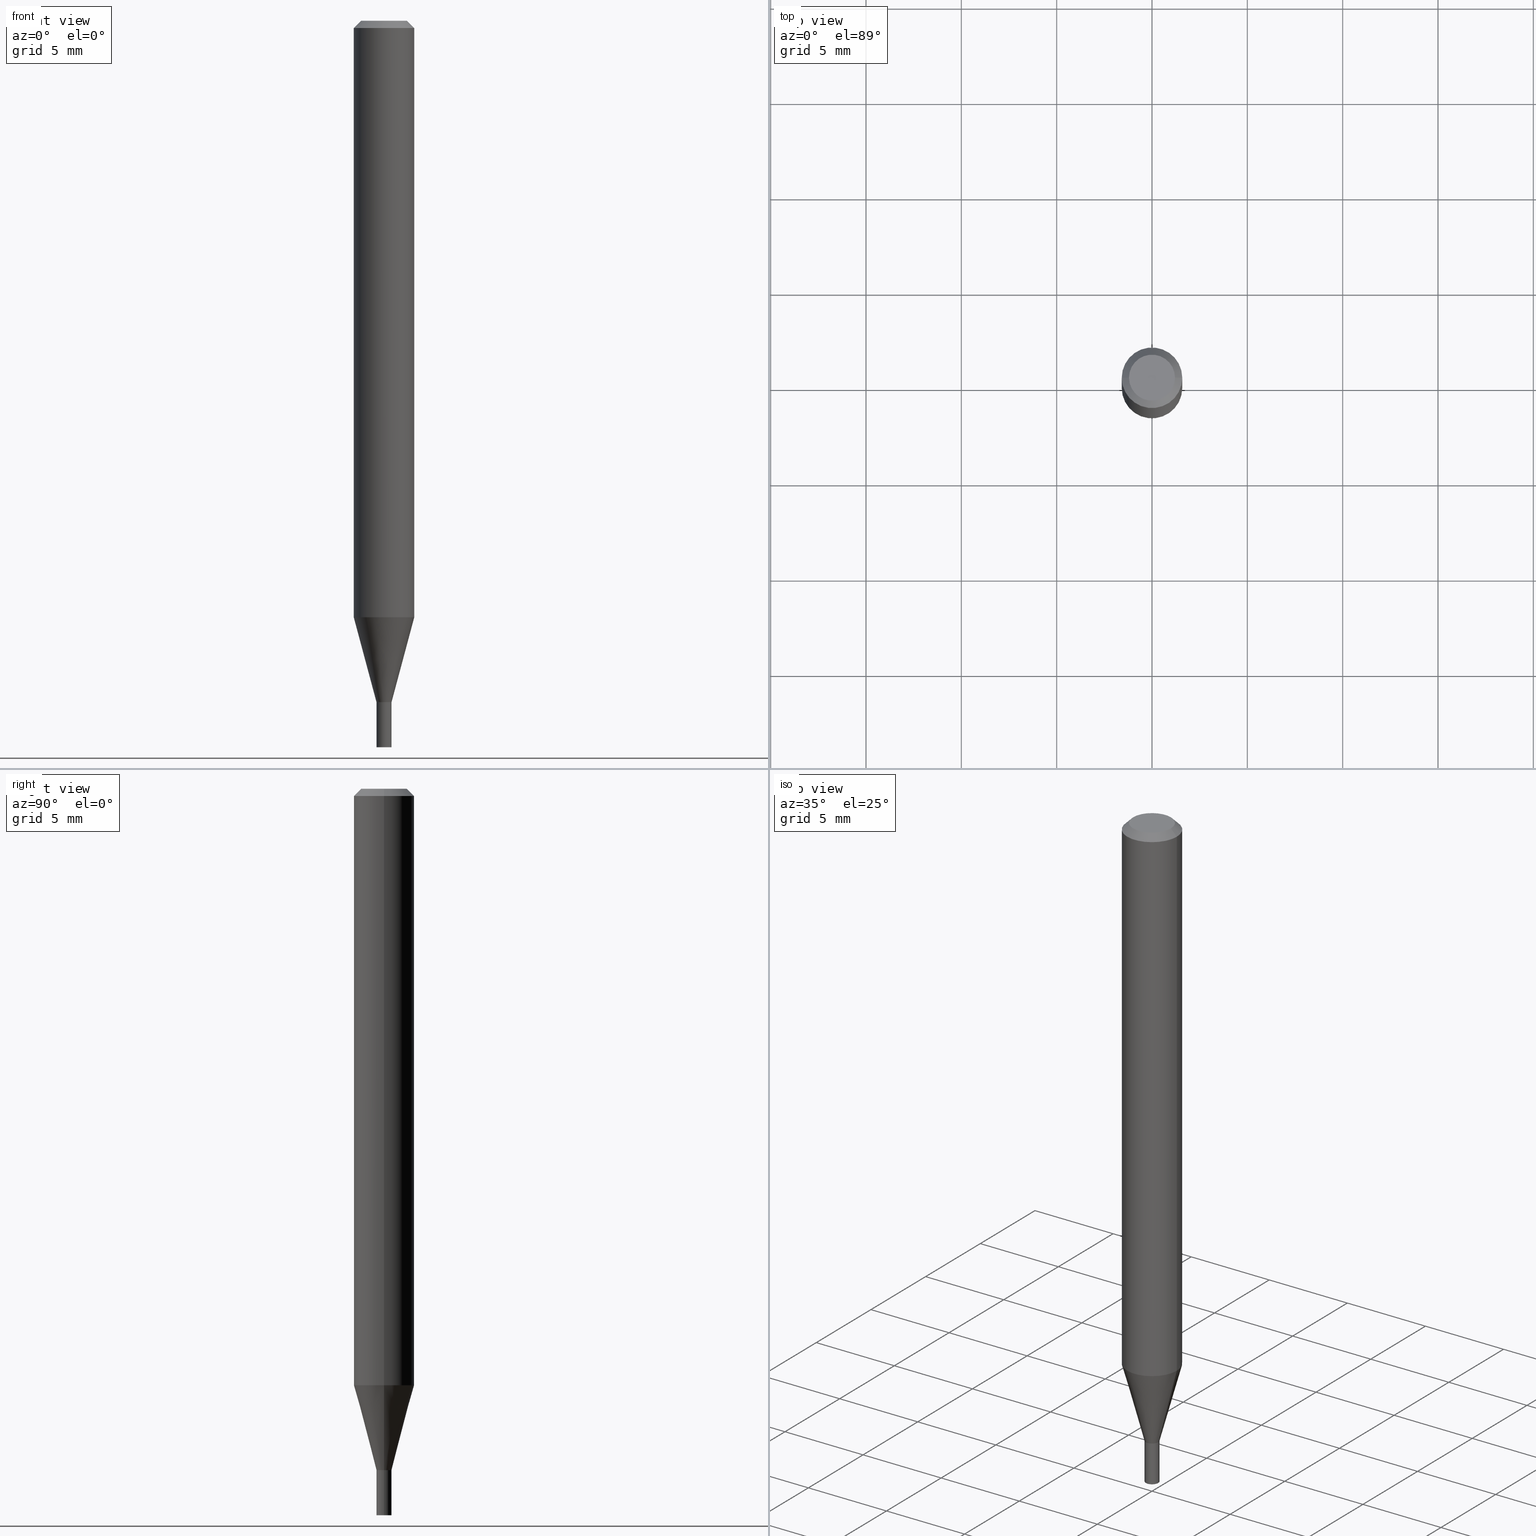
[diagram: canonical four-view strip — front | top / right | iso, engineering-drawing reading convention]
A machine part, canonical four-view strip (front | top / right | iso — engineering-drawing reading convention). The complete STEP part file that produces these views, byte-faithful:
ISO-10303-21;
HEADER;
FILE_DESCRIPTION (( 'STEP AP203' ),
    '1' );
FILE_NAME ('04137.STEP',
    '2024-03-14T17:04:49',
    ( '' ),
    ( '' ),
    'SwSTEP 2.0',
    'SolidWorks 2023',
    '' );
FILE_SCHEMA (( 'CONFIG_CONTROL_DESIGN' ));
ENDSEC;

DATA;
#1 = APPROVAL_DATE_TIME ( #316, #57 ) ;
#2 = DIRECTION ( 'NONE',  ( 1.000000000000000000, -6.982962677686268288E-15, 0.000000000000000000 ) ) ;
#3 = EDGE_CURVE ( 'NONE', #372, #163, #68, .T. ) ;
#4 = APPLICATION_CONTEXT ( 'configuration controlled 3d designs of mechanical parts and assemblies' ) ;
#5 = LINE ( 'NONE', #111, #224 ) ;
#6 = CARTESIAN_POINT ( 'NONE',  ( 1.082359215041715180E-16, 0.01549999999999508715, -1.407000000000000028 ) ) ;
#7 = DIRECTION ( 'NONE',  ( 1.000000000000000000, -6.982962677686275388E-15, 0.000000000000000000 ) ) ;
#8 = CALENDAR_DATE ( 2024, 14, 3 ) ;
#9 = APPROVAL_STATUS ( 'not_yet_approved' ) ;
#10 = ORIENTED_EDGE ( 'NONE', *, *, #281, .T. ) ;
#11 = CARTESIAN_POINT ( 'NONE',  ( 0.01499999999999999944, -5.017258683917600838E-15, -1.407000000000000250 ) ) ;
#12 = DIRECTION ( 'NONE',  ( -2.445468806185136597E-29, 3.491481338843145583E-15, 1.000000000000000000 ) ) ;
#13 = PERSON_AND_ORGANIZATION_ROLE ( 'classification_officer' ) ;
#14 = DIRECTION ( 'NONE',  ( 1.000000000000000000, -6.982962677686266711E-15, 0.000000000000000000 ) ) ;
#15 = CONICAL_SURFACE ( 'NONE', #103, 0.06250000000000000000, 0.7853981633974639331 ) ;
#16 = CC_DESIGN_APPROVAL ( #254, ( #264 ) ) ;
#17 = EDGE_CURVE ( 'NONE', #91, #302, #455, .T. ) ;
#18 = CARTESIAN_POINT ( 'NONE',  ( -0.01550000000000019765, -4.329188511675198905E-15, -1.407000000000000028 ) ) ;
#19 = DIRECTION ( 'NONE',  ( -0.7071067811865585639, 2.468850131082372629E-15, -0.7071067811865364705 ) ) ;
#20 = AXIS2_PLACEMENT_3D ( 'NONE', #199, #50, #310 ) ;
#21 = CIRCLE ( 'NONE', #416, 0.01549999999999999989 ) ;
#22 = APPROVAL_PERSON_ORGANIZATION ( #309, #304, #284 ) ;
#23 = PRODUCT_DEFINITION ( 'UNKNOWN', '', #289, #445 ) ;
#24 = PLANE ( 'NONE',  #20 ) ;
#25 = EDGE_LOOP ( 'NONE', ( #37, #409, #294, #257 ) ) ;
#26 = DIRECTION ( 'NONE',  ( -2.445468806185136597E-29, 3.491481338843145583E-15, 1.000000000000000000 ) ) ;
#27 = DIRECTION ( 'NONE',  ( 1.000000000000000000, -6.982962677686266711E-15, 4.876176775795935232E-29 ) ) ;
#28 = ORIENTED_EDGE ( 'NONE', *, *, #29, .T. ) ;
#29 = EDGE_CURVE ( 'NONE', #227, #293, #218, .T. ) ;
#30 = CARTESIAN_POINT ( 'NONE',  ( 0.01549999999999992183, -1.082359215041365986E-16, 7.558074002483662259E-31 ) ) ;
#31 = CC_DESIGN_PERSON_AND_ORGANIZATION_ASSIGNMENT ( #41, #99, ( #424 ) ) ;
#32 = CARTESIAN_POINT ( 'NONE',  ( 0.01499999999999999944, -5.017258683917600838E-15, -1.407000000000000250 ) ) ;
#33 = DIRECTION ( 'NONE',  ( 1.000000000000000000, -6.982962677686268288E-15, 0.000000000000000000 ) ) ;
#34 = ORIENTED_EDGE ( 'NONE', *, *, #297, .F. ) ;
#35 = CARTESIAN_POINT ( 'NONE',  ( 0.06250000000000000000, -4.364351673553916694E-16, 3.047610484872459871E-30 ) ) ;
#36 = DIRECTION ( 'NONE',  ( 1.000000000000000000, -6.982962677686267499E-15, 4.876176775795935793E-29 ) ) ;
#37 = ORIENTED_EDGE ( 'NONE', *, *, #319, .F. ) ;
#38 = COORDINATED_UNIVERSAL_TIME_OFFSET ( 5, 0, .BEHIND. ) ;
#39 = ADVANCED_FACE ( 'NONE', ( #300 ), #24, .F. ) ;
#40 = AXIS2_PLACEMENT_3D ( 'NONE', #188, #12, #145 ) ;
#41 = PERSON_AND_ORGANIZATION ( #389, #279 ) ;
#42 = CIRCLE ( 'NONE', #255, 0.01550000000000019765 ) ;
#43 = LINE ( 'NONE', #246, #83 ) ;
#44 = VERTEX_POINT ( 'NONE', #157 ) ;
#45 = CIRCLE ( 'NONE', #344, 0.01549999999999964947 ) ;
#46 = CC_DESIGN_APPROVAL ( #304, ( #23 ) ) ;
#47 = DIRECTION ( 'NONE',  ( -2.445468806185136877E-29, 3.491481338843145188E-15, 1.000000000000000000 ) ) ;
#48 = ORIENTED_EDGE ( 'NONE', *, *, #285, .F. ) ;
#49 = ORIENTED_EDGE ( 'NONE', *, *, #415, .T. ) ;
#50 = DIRECTION ( 'NONE',  ( -2.438088387897960049E-29, 3.491481338843145188E-15, 1.000000000000000000 ) ) ;
#51 = CIRCLE ( 'NONE', #438, 0.01549999999999999989 ) ;
#52 = CARTESIAN_POINT ( 'NONE',  ( 0.000000000000000000, 0.000000000000000000, 0.000000000000000000 ) ) ;
#53 = CARTESIAN_POINT ( 'NONE',  ( 3.440774610302488102E-29, -4.912514243752306680E-15, -1.407000000000000250 ) ) ;
#54 = CARTESIAN_POINT ( 'NONE',  ( 3.439551875899394740E-29, -4.910768503082885176E-15, -1.406500000000000083 ) ) ;
#55 = DIRECTION ( 'NONE',  ( -2.445468806185136597E-29, 3.491481338843145583E-15, 1.000000000000000000 ) ) ;
#56 = CARTESIAN_POINT ( 'NONE',  ( -0.06250000000000000000, 3.840629472727444916E-16, -0.01499999999999999944 ) ) ;
#57 = APPROVAL ( #212, 'UNSPECIFIED' ) ;
#58 = FACE_OUTER_BOUND ( 'NONE', #121, .T. ) ;
#59 = APPROVAL_DATE_TIME ( #247, #304 ) ;
#60 = ADVANCED_FACE ( 'NONE', ( #197 ), #418, .F. ) ;
#61 = CARTESIAN_POINT ( 'NONE',  ( 0.000000000000000000, 0.000000000000000000, 0.000000000000000000 ) ) ;
#62 = CARTESIAN_POINT ( 'NONE',  ( 3.440774610302487541E-29, -4.912514243752305891E-15, -1.407000000000000028 ) ) ;
#63 = DIRECTION ( 'NONE',  ( -1.000000000000000000, 6.982962677686266711E-15, 0.000000000000000000 ) ) ;
#64 = PERSON_AND_ORGANIZATION ( #389, #279 ) ;
#65 = ADVANCED_FACE ( 'NONE', ( #100 ), #362, .T. ) ;
#66 = LINE ( 'NONE', #213, #143 ) ;
#67 = DIRECTION ( 'NONE',  ( 1.000000000000000000, 0.000000000000000000, 0.000000000000000000 ) ) ;
#68 = CIRCLE ( 'NONE', #191, 0.06250000000000000000 ) ;
#69 = ORIENTED_EDGE ( 'NONE', *, *, #258, .T. ) ;
#70 = EDGE_CURVE ( 'NONE', #374, #159, #51, .T. ) ;
#71 = LINE ( 'NONE', #390, #358 ) ;
#72 = AXIS2_PLACEMENT_3D ( 'NONE', #61, #450, #461 ) ;
#73 = AXIS2_PLACEMENT_3D ( 'NONE', #342, #463, #33 ) ;
#74 = ORIENTED_EDGE ( 'NONE', *, *, #190, .F. ) ;
#75 = LOCAL_TIME ( 13, 4, 49.00000000000000000, #384 ) ;
#76 = EDGE_LOOP ( 'NONE', ( #118, #443, #375, #136 ) ) ;
#77 = EDGE_CURVE ( 'NONE', #167, #338, #306, .T. ) ;
#78 = ORIENTED_EDGE ( 'NONE', *, *, #148, .T. ) ;
#79 = ORIENTED_EDGE ( 'NONE', *, *, #77, .T. ) ;
#80 = ORIENTED_EDGE ( 'NONE', *, *, #388, .F. ) ;
#81 = CARTESIAN_POINT ( 'NONE',  ( 0.01549999999999999989, -5.020750165256442268E-15, -1.407000000000000028 ) ) ;
#82 = EDGE_LOOP ( 'NONE', ( #406, #28 ) ) ;
#83 = VECTOR ( 'NONE', #323, 39.37007874015748143 ) ;
#84 = AXIS2_PLACEMENT_3D ( 'NONE', #277, #343, #453 ) ;
#85 = UNCERTAINTY_MEASURE_WITH_UNIT (LENGTH_MEASURE( 1.000000000000000082E-05 ), #102, 'distance_accuracy_value', 'NONE');
#86 = CC_DESIGN_APPROVAL ( #57, ( #289 ) ) ;
#87 = DIRECTION ( 'NONE',  ( -2.445468806185136597E-29, 3.491481338843145583E-15, 1.000000000000000000 ) ) ;
#88 = ADVANCED_FACE ( 'NONE', ( #267 ), #298, .T. ) ;
#89 = ORIENTED_EDGE ( 'NONE', *, *, #404, .F. ) ;
#90 = EDGE_CURVE ( 'NONE', #201, #256, #184, .T. ) ;
#91 = VERTEX_POINT ( 'NONE', #422 ) ;
#92 = CARTESIAN_POINT ( 'NONE',  ( 3.668203209277704895E-29, -5.237222008264718177E-15, -1.500000000000000222 ) ) ;
#93 = ORIENTED_EDGE ( 'NONE', *, *, #365, .T. ) ;
#94 = AXIS2_PLACEMENT_3D ( 'NONE', #52, #268, #27 ) ;
#95 = ORIENTED_EDGE ( 'NONE', *, *, #190, .T. ) ;
#96 = ADVANCED_FACE ( 'NONE', ( #195 ), #332, .F. ) ;
#97 = ORIENTED_EDGE ( 'NONE', *, *, #17, .T. ) ;
#98 = ORIENTED_EDGE ( 'NONE', *, *, #393, .T. ) ;
#99 = PERSON_AND_ORGANIZATION_ROLE ( 'design_owner' ) ;
#100 = FACE_OUTER_BOUND ( 'NONE', #205, .T. ) ;
#101 = ADVANCED_BREP_SHAPE_REPRESENTATION ( '04137', ( #273, #431, #328 ), #172 ) ;
#102 =( CONVERSION_BASED_UNIT ( 'INCH', #462 ) LENGTH_UNIT ( ) NAMED_UNIT ( #119 ) );
#103 = AXIS2_PLACEMENT_3D ( 'NONE', #460, #425, #63 ) ;
#104 = EDGE_CURVE ( 'NONE', #293, #372, #234, .T. ) ;
#105 = DIRECTION ( 'NONE',  ( -2.445468806185136597E-29, 3.491481338843145583E-15, 1.000000000000000000 ) ) ;
#106 = CARTESIAN_POINT ( 'NONE',  ( 3.440774610302488102E-29, -4.912514243752306680E-15, -1.407000000000000250 ) ) ;
#107 = CARTESIAN_POINT ( 'NONE',  ( -0.06250000000000000000, -1.732139956936747188E-15, -0.01499999999999999944 ) ) ;
#108 = ORIENTED_EDGE ( 'NONE', *, *, #319, .T. ) ;
#109 = ADVANCED_FACE ( 'NONE', ( #123 ), #340, .F. ) ;
#110 = VECTOR ( 'NONE', #421, 39.37007874015748854 ) ;
#111 = CARTESIAN_POINT ( 'NONE',  ( -0.01550000000000019765, -4.802380119709489081E-15, -1.407000000000000028 ) ) ;
#112 = AXIS2_PLACEMENT_3D ( 'NONE', #335, #413, #129 ) ;
#113 = CIRCLE ( 'NONE', #327, 0.06250000000000000000 ) ;
#114 = ORIENTED_EDGE ( 'NONE', *, *, #207, .F. ) ;
#115 = PERSON_AND_ORGANIZATION_ROLE ( 'creator' ) ;
#116 = EDGE_LOOP ( 'NONE', ( #291, #97, #49, #317 ) ) ;
#117 = CARTESIAN_POINT ( 'NONE',  ( -0.01549999999999999989, 1.101341240428155280E-16, -7.624349389895103058E-31 ) ) ;
#118 = ORIENTED_EDGE ( 'NONE', *, *, #393, .F. ) ;
#119 = DIMENSIONAL_EXPONENTS ( 1.000000000000000000, 0.000000000000000000, 0.000000000000000000, 0.000000000000000000, 0.000000000000000000, 0.000000000000000000, 0.000000000000000000 ) ;
#120 = DIRECTION ( 'NONE',  ( 1.000000000000000000, -6.982962677686268288E-15, 0.000000000000000000 ) ) ;
#121 = EDGE_LOOP ( 'NONE', ( #48, #239, #282, #419 ) ) ;
#122 = ORIENTED_EDGE ( 'NONE', *, *, #297, .T. ) ;
#123 = FACE_OUTER_BOUND ( 'NONE', #241, .T. ) ;
#124 = DIRECTION ( 'NONE',  ( -2.445468806185136597E-29, 3.491481338843145583E-15, 1.000000000000000000 ) ) ;
#125 = DIRECTION ( 'NONE',  ( -2.445468806185136597E-29, 3.491481338843145583E-15, 1.000000000000000000 ) ) ;
#126 = ORIENTED_EDGE ( 'NONE', *, *, #281, .F. ) ;
#127 = CARTESIAN_POINT ( 'NONE',  ( 3.576687321579069994E-29, -5.368277968210015545E-15, -1.500000000000000222 ) ) ;
#128 = AXIS2_PLACEMENT_3D ( 'NONE', #166, #414, #232 ) ;
#129 = DIRECTION ( 'NONE',  ( -1.000000000000000000, 6.982962677686266711E-15, 0.000000000000000000 ) ) ;
#130 = ORIENTED_EDGE ( 'NONE', *, *, #104, .F. ) ;
#131 = CALENDAR_DATE ( 2024, 14, 3 ) ;
#132 = DIRECTION ( 'NONE',  ( -2.445468806185136597E-29, 3.491481338843145583E-15, 1.000000000000000000 ) ) ;
#133 = FACE_OUTER_BOUND ( 'NONE', #169, .T. ) ;
#134 = DIRECTION ( 'NONE',  ( 0.2588190451025213501, 1.565188264969621968E-15, 0.9659258262890682012 ) ) ;
#135 = AXIS2_PLACEMENT_3D ( 'NONE', #165, #124, #303 ) ;
#136 = ORIENTED_EDGE ( 'NONE', *, *, #90, .F. ) ;
#137 = DIRECTION ( 'NONE',  ( 0.7071067811861776464, -2.468850131078383359E-15, 0.7071067811869171660 ) ) ;
#138 = CARTESIAN_POINT ( 'NONE',  ( 3.440774610302487541E-29, -4.912514243752305891E-15, -1.407000000000000028 ) ) ;
#139 = CARTESIAN_POINT ( 'NONE',  ( -0.04749999999999999362, 3.578768372314202617E-16, -4.684051019975790718E-16 ) ) ;
#140 = CC_DESIGN_PERSON_AND_ORGANIZATION_ASSIGNMENT ( #146, #115, ( #289 ) ) ;
#141 = DIRECTION ( 'NONE',  ( 1.000000000000000000, -6.982962677686275388E-15, 0.000000000000000000 ) ) ;
#142 = DATE_TIME_ROLE ( 'classification_date' ) ;
#143 = VECTOR ( 'NONE', #351, 39.37007874015748143 ) ;
#144 = APPROVAL_PERSON_ORGANIZATION ( #64, #57, #350 ) ;
#145 = DIRECTION ( 'NONE',  ( 1.000000000000000000, -6.982962677686262766E-15, 0.000000000000000000 ) ) ;
#146 = PERSON_AND_ORGANIZATION ( #389, #279 ) ;
#147 = PLANE ( 'NONE',  #447 ) ;
#148 = EDGE_CURVE ( 'NONE', #256, #201, #333, .T. ) ;
#149 = CARTESIAN_POINT ( 'NONE',  ( 0.06250000000000001388, -4.736521280846363803E-15, -1.231593612044264097 ) ) ;
#150 = COORDINATED_UNIVERSAL_TIME_OFFSET ( 5, 0, .BEHIND. ) ;
#151 = VECTOR ( 'NONE', #137, 39.37007874015748854 ) ;
#152 = FACE_OUTER_BOUND ( 'NONE', #82, .T. ) ;
#153 = ADVANCED_FACE ( 'NONE', ( #243 ), #158, .T. ) ;
#154 = CC_DESIGN_PERSON_AND_ORGANIZATION_ASSIGNMENT ( #326, #13, ( #264 ) ) ;
#155 = DIRECTION ( 'NONE',  ( -2.445468806185136597E-29, 3.491481338843145583E-15, 1.000000000000000000 ) ) ;
#156 = ORIENTED_EDGE ( 'NONE', *, *, #285, .T. ) ;
#157 = CARTESIAN_POINT ( 'NONE',  ( -0.01549999999999964947, -4.800634379040071522E-15, -1.406500000000000083 ) ) ;
#158 = CONICAL_SURFACE ( 'NONE', #395, 0.01499999999999999944, 0.7853981633969253640 ) ;
#159 = VERTEX_POINT ( 'NONE', #262 ) ;
#160 = CARTESIAN_POINT ( 'NONE',  ( 0.01550000000000019765, -5.020750165256443846E-15, -1.407000000000000028 ) ) ;
#161 = CARTESIAN_POINT ( 'NONE',  ( 3.668203209277705088E-31, -5.237222008264718399E-17, -0.01499999999999999944 ) ) ;
#162 = CARTESIAN_POINT ( 'NONE',  ( 3.440774610302487541E-29, -4.912514243752305891E-15, -1.407000000000000028 ) ) ;
#163 = VERTEX_POINT ( 'NONE', #412 ) ;
#164 = CARTESIAN_POINT ( 'NONE',  ( 1.145470065593040868E-44, -1.635427672643458845E-30, -4.684051019975766066E-16 ) ) ;
#165 = CARTESIAN_POINT ( 'NONE',  ( 0.000000000000000000, 0.000000000000000000, 0.000000000000000000 ) ) ;
#166 = CARTESIAN_POINT ( 'NONE',  ( 0.000000000000000000, 0.000000000000000000, 0.000000000000000000 ) ) ;
#167 = VERTEX_POINT ( 'NONE', #160 ) ;
#168 = CC_DESIGN_DATE_AND_TIME_ASSIGNMENT ( #391, #142, ( #264 ) ) ;
#169 = EDGE_LOOP ( 'NONE', ( #78, #219 ) ) ;
#170 = CIRCLE ( 'NONE', #73, 0.01499999999999999944 ) ;
#171 = PERSON_AND_ORGANIZATION ( #389, #279 ) ;
#172 =( GEOMETRIC_REPRESENTATION_CONTEXT ( 3 ) GLOBAL_UNCERTAINTY_ASSIGNED_CONTEXT ( ( #85 ) ) GLOBAL_UNIT_ASSIGNED_CONTEXT ( ( #102, #465, #347 ) ) REPRESENTATION_CONTEXT ( 'NONE', 'WORKASPACE' ) );
#173 = FACE_OUTER_BOUND ( 'NONE', #182, .T. ) ;
#174 = DIRECTION ( 'NONE',  ( -2.445468806185136597E-29, 3.491481338843145583E-15, 1.000000000000000000 ) ) ;
#175 = LINE ( 'NONE', #35, #215 ) ;
#176 = ORIENTED_EDGE ( 'NONE', *, *, #77, .F. ) ;
#177 = EDGE_CURVE ( 'NONE', #91, #44, #366, .T. ) ;
#178 = FACE_OUTER_BOUND ( 'NONE', #116, .T. ) ;
#179 = CALENDAR_DATE ( 2024, 14, 3 ) ;
#180 = VECTOR ( 'NONE', #47, 39.37007874015748143 ) ;
#181 = DIRECTION ( 'NONE',  ( -2.445468806185136597E-29, 3.491481338843145583E-15, 1.000000000000000000 ) ) ;
#182 = EDGE_LOOP ( 'NONE', ( #423, #329, #225, #130 ) ) ;
#183 = PERSON_AND_ORGANIZATION_ROLE ( 'design_supplier' ) ;
#184 = CIRCLE ( 'NONE', #84, 0.01549999999999999989 ) ;
#185 = CARTESIAN_POINT ( 'NONE',  ( 3.440774610302487541E-29, -4.912514243752305891E-15, -1.407000000000000028 ) ) ;
#186 = EDGE_CURVE ( 'NONE', #374, #256, #43, .T. ) ;
#187 = ORIENTED_EDGE ( 'NONE', *, *, #238, .F. ) ;
#188 = CARTESIAN_POINT ( 'NONE',  ( 3.011823760151126772E-29, -4.300086113490972134E-15, -1.231593612044264097 ) ) ;
#189 = EDGE_LOOP ( 'NONE', ( #337, #187 ) ) ;
#190 = EDGE_CURVE ( 'NONE', #302, #91, #170, .T. ) ;
#191 = AXIS2_PLACEMENT_3D ( 'NONE', #161, #174, #202 ) ;
#192 = AXIS2_PLACEMENT_3D ( 'NONE', #127, #271, #417 ) ;
#193 = ORIENTED_EDGE ( 'NONE', *, *, #148, .F. ) ;
#194 = ADVANCED_FACE ( 'NONE', ( #173 ), #15, .T. ) ;
#195 = FACE_OUTER_BOUND ( 'NONE', #189, .T. ) ;
#196 = ORIENTED_EDGE ( 'NONE', *, *, #177, .T. ) ;
#197 = FACE_OUTER_BOUND ( 'NONE', #346, .T. ) ;
#198 = AXIS2_PLACEMENT_3D ( 'NONE', #106, #181, #2 ) ;
#199 = CARTESIAN_POINT ( 'NONE',  ( 3.440774610302487541E-29, -4.912514243752305891E-15, -1.407000000000000028 ) ) ;
#200 = FACE_OUTER_BOUND ( 'NONE', #265, .T. ) ;
#201 = VERTEX_POINT ( 'NONE', #210 ) ;
#202 = DIRECTION ( 'NONE',  ( 1.000000000000000000, -6.982962677686266711E-15, 0.000000000000000000 ) ) ;
#203 = PERSON_AND_ORGANIZATION_ROLE ( 'creator' ) ;
#204 = ADVANCED_FACE ( 'NONE', ( #178 ), #433, .T. ) ;
#205 = EDGE_LOOP ( 'NONE', ( #446, #331, #444, #275 ) ) ;
#206 = AXIS2_PLACEMENT_3D ( 'NONE', #6, #278, #312 ) ;
#207 = EDGE_CURVE ( 'NONE', #235, #167, #42, .T. ) ;
#208 = DATE_TIME_ROLE ( 'creation_date' ) ;
#209 = DIRECTION ( 'NONE',  ( -2.445468806185136597E-29, 3.491481338843145583E-15, 1.000000000000000000 ) ) ;
#210 = CARTESIAN_POINT ( 'NONE',  ( -0.01549999999999999989, -4.964734001965696802E-15, -1.407000000000000028 ) ) ;
#211 = CARTESIAN_POINT ( 'NONE',  ( 3.439551875899394740E-29, -4.910768503082885176E-15, -1.406500000000000083 ) ) ;
#212 = APPROVAL_STATUS ( 'not_yet_approved' ) ;
#213 = CARTESIAN_POINT ( 'NONE',  ( 0.06250000000000000000, -4.811533449433679005E-16, -0.01499999999999999944 ) ) ;
#214 = DIRECTION ( 'NONE',  ( 1.000000000000000000, -6.982962677686275388E-15, 0.000000000000000000 ) ) ;
#215 = VECTOR ( 'NONE', #237, 39.37007874015748143 ) ;
#216 = CALENDAR_DATE ( 2024, 14, 3 ) ;
#217 = EDGE_CURVE ( 'NONE', #452, #292, #386, .T. ) ;
#218 = CIRCLE ( 'NONE', #426, 0.04749999999999999362 ) ;
#219 = ORIENTED_EDGE ( 'NONE', *, *, #90, .T. ) ;
#220 = LINE ( 'NONE', #223, #180 ) ;
#221 = PERSON_AND_ORGANIZATION ( #389, #279 ) ;
#222 = CC_DESIGN_DATE_AND_TIME_ASSIGNMENT ( #420, #208, ( #23 ) ) ;
#223 = CARTESIAN_POINT ( 'NONE',  ( -0.01549999999999992183, 1.101341240428149734E-16, -7.624349389895065398E-31 ) ) ;
#224 = VECTOR ( 'NONE', #435, 39.37007874015747433 ) ;
#225 = ORIENTED_EDGE ( 'NONE', *, *, #228, .T. ) ;
#226 = CARTESIAN_POINT ( 'NONE',  ( 3.316907271900976096E-16, 0.04749999999999999362, -4.000479145938377490E-16 ) ) ;
#227 = VERTEX_POINT ( 'NONE', #392 ) ;
#228 = EDGE_CURVE ( 'NONE', #163, #372, #113, .T. ) ;
#229 = CARTESIAN_POINT ( 'NONE',  ( -0.01499999999999999944, -4.805932833388291557E-15, -1.407000000000000250 ) ) ;
#230 = EDGE_LOOP ( 'NONE', ( #383, #108, #325, #405 ) ) ;
#231 = VECTOR ( 'NONE', #371, 39.37007874015748143 ) ;
#232 = DIRECTION ( 'NONE',  ( 1.000000000000000000, -6.982962677686266711E-15, 4.876176775795935793E-29 ) ) ;
#233 = CIRCLE ( 'NONE', #286, 0.01549999999999964947 ) ;
#234 = LINE ( 'NONE', #56, #427 ) ;
#235 = VERTEX_POINT ( 'NONE', #18 ) ;
#236 = DIRECTION ( 'NONE',  ( 1.000000000000000000, -6.982962677686271444E-15, 0.000000000000000000 ) ) ;
#237 = DIRECTION ( 'NONE',  ( -2.445468806185136877E-29, 3.491481338843145188E-15, 1.000000000000000000 ) ) ;
#238 = EDGE_CURVE ( 'NONE', #159, #374, #21, .T. ) ;
#239 = ORIENTED_EDGE ( 'NONE', *, *, #207, .T. ) ;
#240 = CC_DESIGN_PERSON_AND_ORGANIZATION_ASSIGNMENT ( #436, #183, ( #289 ) ) ;
#241 = EDGE_LOOP ( 'NONE', ( #114, #69, #93, #176 ) ) ;
#242 =( LENGTH_UNIT ( ) NAMED_UNIT ( * ) SI_UNIT ( $, .METRE. ) );
#243 = FACE_OUTER_BOUND ( 'NONE', #441, .T. ) ;
#244 = CIRCLE ( 'NONE', #439, 0.04749999999999999362 ) ;
#245 = PRODUCT_RELATED_PRODUCT_CATEGORY ( 'detail', '', ( #424 ) ) ;
#246 = CARTESIAN_POINT ( 'NONE',  ( 0.01549999999999999989, -1.082359215041371286E-16, 7.558074002483699918E-31 ) ) ;
#247 = DATE_AND_TIME ( #276, #315 ) ;
#248 = ADVANCED_FACE ( 'NONE', ( #152 ), #147, .F. ) ;
#249 = DIRECTION ( 'NONE',  ( -2.445468806185136597E-29, 3.491481338843145583E-15, 1.000000000000000000 ) ) ;
#250 = DIRECTION ( 'NONE',  ( -2.445468806185136597E-29, 3.491481338843145583E-15, 1.000000000000000000 ) ) ;
#251 = AXIS2_PLACEMENT_3D ( 'NONE', #185, #250, #7 ) ;
#252 = DIRECTION ( 'NONE',  ( -2.445468806185136597E-29, 3.491481338843145583E-15, 1.000000000000000000 ) ) ;
#253 = DATE_AND_TIME ( #8, #434 ) ;
#254 = APPROVAL ( #9, 'UNSPECIFIED' ) ;
#255 = AXIS2_PLACEMENT_3D ( 'NONE', #138, #249, #141 ) ;
#256 = VERTEX_POINT ( 'NONE', #81 ) ;
#257 = ORIENTED_EDGE ( 'NONE', *, *, #3, .F. ) ;
#258 = EDGE_CURVE ( 'NONE', #235, #44, #220, .T. ) ;
#259 = DIRECTION ( 'NONE',  ( 2.438088387897960049E-29, -3.491481338843145188E-15, -1.000000000000000000 ) ) ;
#260 = DIRECTION ( 'NONE',  ( -2.445468806185136877E-29, 3.491481338843145188E-15, 1.000000000000000000 ) ) ;
#261 = ORIENTED_EDGE ( 'NONE', *, *, #258, .F. ) ;
#262 = CARTESIAN_POINT ( 'NONE',  ( -0.01549999999999999989, -4.964734001965696802E-15, -1.500000000000000222 ) ) ;
#263 = AXIS2_PLACEMENT_3D ( 'NONE', #290, #55, #456 ) ;
#264 = SECURITY_CLASSIFICATION ( '', '', #320 ) ;
#265 = EDGE_LOOP ( 'NONE', ( #122, #156, #80, #89 ) ) ;
#266 = ORIENTED_EDGE ( 'NONE', *, *, #186, .F. ) ;
#267 = FACE_OUTER_BOUND ( 'NONE', #400, .T. ) ;
#268 = DIRECTION ( 'NONE',  ( -2.445468806185136597E-29, 3.491481338843145583E-15, 1.000000000000000000 ) ) ;
#269 = DIRECTION ( 'NONE',  ( 1.000000000000000000, -6.982962677686267499E-15, 4.852736867747366768E-29 ) ) ;
#270 = CYLINDRICAL_SURFACE ( 'NONE', #128, 0.06250000000000000000 ) ;
#271 = DIRECTION ( 'NONE',  ( -2.438088387897960049E-29, 3.491481338843145188E-15, 1.000000000000000000 ) ) ;
#272 = AXIS2_PLACEMENT_3D ( 'NONE', #162, #125, #301 ) ;
#273 = MANIFOLD_SOLID_BREP ( 'Body-Move/Copy2[1]', #432 ) ;
#274 = EDGE_CURVE ( 'NONE', #293, #227, #244, .T. ) ;
#275 = ORIENTED_EDGE ( 'NONE', *, *, #3, .T. ) ;
#276 = CALENDAR_DATE ( 2024, 14, 3 ) ;
#277 = CARTESIAN_POINT ( 'NONE',  ( 3.440774610302487541E-29, -4.912514243752305891E-15, -1.407000000000000028 ) ) ;
#278 = DIRECTION ( 'NONE',  ( 2.438088387897960049E-29, -3.491481338843145188E-15, -1.000000000000000000 ) ) ;
#279 = ORGANIZATION ( 'UNSPECIFIED', 'UNSPECIFIED', '' ) ;
#280 = MECHANICAL_CONTEXT ( 'NONE', #4, 'mechanical' ) ;
#281 = EDGE_CURVE ( 'NONE', #338, #44, #233, .T. ) ;
#282 = ORIENTED_EDGE ( 'NONE', *, *, #404, .T. ) ;
#283 = ADVANCED_FACE ( 'NONE', ( #58 ), #288, .T. ) ;
#284 = APPROVAL_ROLE ( '' ) ;
#285 = EDGE_CURVE ( 'NONE', #235, #452, #5, .T. ) ;
#286 = AXIS2_PLACEMENT_3D ( 'NONE', #211, #454, #236 ) ;
#287 = CONICAL_SURFACE ( 'NONE', #272, 0.01550000000000019765, 0.2617993877991500740 ) ;
#288 = CONICAL_SURFACE ( 'NONE', #296, 0.01550000000000019765, 0.2617993877991500740 ) ;
#289 = PRODUCT_DEFINITION_FORMATION_WITH_SPECIFIED_SOURCE ( 'ANY', '', #424, .NOT_KNOWN. ) ;
#290 = CARTESIAN_POINT ( 'NONE',  ( 0.000000000000000000, 0.000000000000000000, 0.000000000000000000 ) ) ;
#291 = ORIENTED_EDGE ( 'NONE', *, *, #177, .F. ) ;
#292 = VERTEX_POINT ( 'NONE', #149 ) ;
#293 = VERTEX_POINT ( 'NONE', #139 ) ;
#294 = ORIENTED_EDGE ( 'NONE', *, *, #437, .T. ) ;
#295 = LINE ( 'NONE', #117, #352 ) ;
#296 = AXIS2_PLACEMENT_3D ( 'NONE', #376, #308, #214 ) ;
#297 = EDGE_CURVE ( 'NONE', #167, #235, #363, .T. ) ;
#298 = CYLINDRICAL_SURFACE ( 'NONE', #135, 0.01549999999999999989 ) ;
#299 = CYLINDRICAL_SURFACE ( 'NONE', #94, 0.01549999999999999989 ) ;
#300 = FACE_OUTER_BOUND ( 'NONE', #311, .T. ) ;
#301 = DIRECTION ( 'NONE',  ( 1.000000000000000000, -6.982962677686275388E-15, 0.000000000000000000 ) ) ;
#302 = VERTEX_POINT ( 'NONE', #11 ) ;
#303 = DIRECTION ( 'NONE',  ( 1.000000000000000000, -6.982962677686266711E-15, 4.876176775795935232E-29 ) ) ;
#304 = APPROVAL ( #313, 'UNSPECIFIED' ) ;
#305 = DIRECTION ( 'NONE',  ( 1.000000000000000000, -6.982962677686267499E-15, 4.852736867747366768E-29 ) ) ;
#306 = LINE ( 'NONE', #30, #231 ) ;
#307 = AXIS2_PLACEMENT_3D ( 'NONE', #53, #379, #368 ) ;
#308 = DIRECTION ( 'NONE',  ( -2.445468806185136597E-29, 3.491481338843145583E-15, 1.000000000000000000 ) ) ;
#309 = PERSON_AND_ORGANIZATION ( #389, #279 ) ;
#310 = DIRECTION ( 'NONE',  ( 1.000000000000000000, -6.982962677686265922E-15, 4.876176775795935793E-29 ) ) ;
#311 = EDGE_LOOP ( 'NONE', ( #74, #410 ) ) ;
#312 = DIRECTION ( 'NONE',  ( -1.000000000000000000, 6.982962677686265922E-15, -4.876176775795935793E-29 ) ) ;
#313 = APPROVAL_STATUS ( 'not_yet_approved' ) ;
#314 = AXIS2_PLACEMENT_3D ( 'NONE', #385, #252, #330 ) ;
#315 = LOCAL_TIME ( 13, 4, 49.00000000000000000, #428 ) ;
#316 = DATE_AND_TIME ( #179, #345 ) ;
#317 = ORIENTED_EDGE ( 'NONE', *, *, #365, .F. ) ;
#318 = PLANE ( 'NONE',  #206 ) ;
#319 = EDGE_CURVE ( 'NONE', #452, #372, #71, .T. ) ;
#320 = SECURITY_CLASSIFICATION_LEVEL ( 'unclassified' ) ;
#321 = ADVANCED_FACE ( 'NONE', ( #354 ), #299, .T. ) ;
#322 = CIRCLE ( 'NONE', #40, 0.06250000000000000000 ) ;
#323 = DIRECTION ( 'NONE',  ( -2.445468806185136877E-29, 3.491481338843145188E-15, 1.000000000000000000 ) ) ;
#324 = CARTESIAN_POINT ( 'NONE',  ( 0.01549999999999999989, -5.345457929768855342E-15, -1.500000000000000222 ) ) ;
#325 = ORIENTED_EDGE ( 'NONE', *, *, #228, .F. ) ;
#326 = PERSON_AND_ORGANIZATION ( #389, #279 ) ;
#327 = AXIS2_PLACEMENT_3D ( 'NONE', #440, #402, #14 ) ;
#328 = AXIS2_PLACEMENT_3D ( 'NONE', #353, #341, #67 ) ;
#329 = ORIENTED_EDGE ( 'NONE', *, *, #373, .T. ) ;
#330 = DIRECTION ( 'NONE',  ( 1.000000000000000000, -6.982962677686262766E-15, 0.000000000000000000 ) ) ;
#331 = ORIENTED_EDGE ( 'NONE', *, *, #274, .F. ) ;
#332 = PLANE ( 'NONE',  #192 ) ;
#333 = CIRCLE ( 'NONE', #370, 0.01549999999999999989 ) ;
#334 = LOCAL_TIME ( 13, 4, 49.00000000000000000, #150 ) ;
#335 = CARTESIAN_POINT ( 'NONE',  ( 3.668203209277705088E-31, -5.237222008264718399E-17, -0.01499999999999999944 ) ) ;
#336 = CARTESIAN_POINT ( 'NONE',  ( 0.01549999999999964947, -5.019004424587019187E-15, -1.406500000000000083 ) ) ;
#337 = ORIENTED_EDGE ( 'NONE', *, *, #70, .F. ) ;
#338 = VERTEX_POINT ( 'NONE', #336 ) ;
#339 = DIRECTION ( 'NONE',  ( -2.445468806185136597E-29, 3.491481338843145583E-15, 1.000000000000000000 ) ) ;
#340 = CYLINDRICAL_SURFACE ( 'NONE', #381, 0.01549999999999992183 ) ;
#341 = DIRECTION ( 'NONE',  ( 0.000000000000000000, 0.000000000000000000, 1.000000000000000000 ) ) ;
#342 = CARTESIAN_POINT ( 'NONE',  ( 3.440774610302488102E-29, -4.912514243752306680E-15, -1.407000000000000250 ) ) ;
#343 = DIRECTION ( 'NONE',  ( -2.445468806185136597E-29, 3.491481338843145583E-15, 1.000000000000000000 ) ) ;
#344 = AXIS2_PLACEMENT_3D ( 'NONE', #54, #339, #429 ) ;
#345 = LOCAL_TIME ( 13, 4, 49.00000000000000000, #38 ) ;
#346 = EDGE_LOOP ( 'NONE', ( #261, #34, #79, #10 ) ) ;
#347 =( NAMED_UNIT ( * ) SI_UNIT ( $, .STERADIAN. ) SOLID_ANGLE_UNIT ( ) );
#348 = DIRECTION ( 'NONE',  ( 1.000000000000000000, -6.982962677686238312E-15, 0.000000000000000000 ) ) ;
#349 = APPLICATION_PROTOCOL_DEFINITION ( 'international standard', 'config_control_design', 1994, #4 ) ;
#350 = APPROVAL_ROLE ( '' ) ;
#351 = DIRECTION ( 'NONE',  ( 0.7071067811865585639, -7.319954787623292333E-15, -0.7071067811865364705 ) ) ;
#352 = VECTOR ( 'NONE', #260, 39.37007874015748143 ) ;
#353 = CARTESIAN_POINT ( 'NONE',  ( 0.000000000000000000, 0.000000000000000000, 0.000000000000000000 ) ) ;
#354 = FACE_OUTER_BOUND ( 'NONE', #76, .T. ) ;
#355 = COORDINATED_UNIVERSAL_TIME_OFFSET ( 5, 0, .BEHIND. ) ;
#356 = APPLICATION_CONTEXT ( 'configuration controlled 3d designs of mechanical parts and assemblies' ) ;
#357 = CLOSED_SHELL ( 'NONE', ( #109, #153, #194, #401, #359, #283, #364, #65, #248, #39, #204, #60 ) ) ;
#358 = VECTOR ( 'NONE', #394, 39.37007874015748143 ) ;
#359 = ADVANCED_FACE ( 'NONE', ( #200 ), #287, .T. ) ;
#360 = APPROVAL_DATE_TIME ( #253, #254 ) ;
#361 = ORIENTED_EDGE ( 'NONE', *, *, #415, .F. ) ;
#362 = CONICAL_SURFACE ( 'NONE', #112, 0.06250000000000000000, 0.7853981633974639331 ) ;
#363 = CIRCLE ( 'NONE', #251, 0.01550000000000019765 ) ;
#364 = ADVANCED_FACE ( 'NONE', ( #451 ), #270, .T. ) ;
#365 = EDGE_CURVE ( 'NONE', #44, #338, #45, .T. ) ;
#366 = LINE ( 'NONE', #229, #110 ) ;
#367 = DIRECTION ( 'NONE',  ( 1.000000000000000000, -6.982962677686238312E-15, 0.000000000000000000 ) ) ;
#368 = DIRECTION ( 'NONE',  ( 1.000000000000000000, -6.982962677686268288E-15, 0.000000000000000000 ) ) ;
#369 = ORIENTED_EDGE ( 'NONE', *, *, #70, .T. ) ;
#370 = AXIS2_PLACEMENT_3D ( 'NONE', #62, #209, #348 ) ;
#371 = DIRECTION ( 'NONE',  ( -2.445468806185136877E-29, 3.491481338843145188E-15, 1.000000000000000000 ) ) ;
#372 = VERTEX_POINT ( 'NONE', #107 ) ;
#373 = EDGE_CURVE ( 'NONE', #227, #163, #66, .T. ) ;
#374 = VERTEX_POINT ( 'NONE', #324 ) ;
#375 = ORIENTED_EDGE ( 'NONE', *, *, #186, .T. ) ;
#376 = CARTESIAN_POINT ( 'NONE',  ( 3.440774610302487541E-29, -4.912514243752305891E-15, -1.407000000000000028 ) ) ;
#377 = APPLICATION_PROTOCOL_DEFINITION ( 'international standard', 'config_control_design', 1994, #356 ) ;
#378 = LINE ( 'NONE', #459, #407 ) ;
#379 = DIRECTION ( 'NONE',  ( -2.445468806185136597E-29, 3.491481338843145583E-15, 1.000000000000000000 ) ) ;
#380 = CARTESIAN_POINT ( 'NONE',  ( 3.440774610302488102E-29, -4.912514243752306680E-15, -1.407000000000000250 ) ) ;
#381 = AXIS2_PLACEMENT_3D ( 'NONE', #457, #411, #36 ) ;
#382 = LINE ( 'NONE', #32, #151 ) ;
#383 = ORIENTED_EDGE ( 'NONE', *, *, #388, .T. ) ;
#384 = COORDINATED_UNIVERSAL_TIME_OFFSET ( 5, 0, .BEHIND. ) ;
#385 = CARTESIAN_POINT ( 'NONE',  ( 3.011823760151126772E-29, -4.300086113490972134E-15, -1.231593612044264097 ) ) ;
#386 = CIRCLE ( 'NONE', #314, 0.06250000000000000000 ) ;
#387 = APPROVAL_ROLE ( '' ) ;
#388 = EDGE_CURVE ( 'NONE', #292, #452, #322, .T. ) ;
#389 = PERSON ( 'UNSPECIFIED', 'UNSPECIFIED', 'UNSPECIFIED', ('UNSPECIFIED'), ('UNSPECIFIED'), ('UNSPECIFIED') ) ;
#390 = CARTESIAN_POINT ( 'NONE',  ( -0.06250000000000000000, 4.440892098500626162E-16, -3.074334431409316114E-30 ) ) ;
#391 = DATE_AND_TIME ( #216, #334 ) ;
#392 = CARTESIAN_POINT ( 'NONE',  ( 0.04749999999999999362, -4.035134999187586019E-16, -4.684051019975741414E-16 ) ) ;
#393 = EDGE_CURVE ( 'NONE', #159, #201, #295, .T. ) ;
#394 = DIRECTION ( 'NONE',  ( -2.445468806185136877E-29, 3.491481338843145188E-15, 1.000000000000000000 ) ) ;
#395 = AXIS2_PLACEMENT_3D ( 'NONE', #380, #155, #120 ) ;
#396 = SHAPE_DEFINITION_REPRESENTATION ( #464, #101 ) ;
#397 = CC_DESIGN_PERSON_AND_ORGANIZATION_ASSIGNMENT ( #171, #203, ( #23 ) ) ;
#398 = CYLINDRICAL_SURFACE ( 'NONE', #263, 0.06250000000000000000 ) ;
#399 = DIRECTION ( 'NONE',  ( -1.000000000000000000, 6.982962677686265922E-15, -4.876176775795935793E-29 ) ) ;
#400 = EDGE_LOOP ( 'NONE', ( #369, #98, #193, #266 ) ) ;
#401 = ADVANCED_FACE ( 'NONE', ( #403 ), #398, .T. ) ;
#402 = DIRECTION ( 'NONE',  ( -2.445468806185136597E-29, 3.491481338843145583E-15, 1.000000000000000000 ) ) ;
#403 = FACE_OUTER_BOUND ( 'NONE', #230, .T. ) ;
#404 = EDGE_CURVE ( 'NONE', #167, #292, #378, .T. ) ;
#405 = ORIENTED_EDGE ( 'NONE', *, *, #437, .F. ) ;
#406 = ORIENTED_EDGE ( 'NONE', *, *, #274, .T. ) ;
#407 = VECTOR ( 'NONE', #134, 39.37007874015747433 ) ;
#408 = CARTESIAN_POINT ( 'NONE',  ( 3.668203209277704895E-29, -5.237222008264718177E-15, -1.500000000000000222 ) ) ;
#409 = ORIENTED_EDGE ( 'NONE', *, *, #217, .T. ) ;
#410 = ORIENTED_EDGE ( 'NONE', *, *, #17, .F. ) ;
#411 = DIRECTION ( 'NONE',  ( -2.445468806185136597E-29, 3.491481338843145583E-15, 1.000000000000000000 ) ) ;
#412 = CARTESIAN_POINT ( 'NONE',  ( 0.06250000000000000000, -4.888073874380388472E-16, -0.01499999999999999944 ) ) ;
#413 = DIRECTION ( 'NONE',  ( 2.445468806185136597E-29, -3.491481338843145583E-15, -1.000000000000000000 ) ) ;
#414 = DIRECTION ( 'NONE',  ( -2.445468806185136597E-29, 3.491481338843145583E-15, 1.000000000000000000 ) ) ;
#415 = EDGE_CURVE ( 'NONE', #302, #338, #382, .T. ) ;
#416 = AXIS2_PLACEMENT_3D ( 'NONE', #408, #87, #442 ) ;
#417 = DIRECTION ( 'NONE',  ( 1.000000000000000000, -6.982962677686265922E-15, 4.876176775795935793E-29 ) ) ;
#418 = CYLINDRICAL_SURFACE ( 'NONE', #72, 0.01549999999999992183 ) ;
#419 = ORIENTED_EDGE ( 'NONE', *, *, #217, .F. ) ;
#420 = DATE_AND_TIME ( #131, #75 ) ;
#421 = DIRECTION ( 'NONE',  ( -0.7071067811861776464, 7.493145998869016252E-15, 0.7071067811869171660 ) ) ;
#422 = CARTESIAN_POINT ( 'NONE',  ( -0.01499999999999999944, -4.803283606214181934E-15, -1.407000000000000250 ) ) ;
#423 = ORIENTED_EDGE ( 'NONE', *, *, #29, .F. ) ;
#424 = PRODUCT ( '04137', '04137', '', ( #280 ) ) ;
#425 = DIRECTION ( 'NONE',  ( 2.445468806185136597E-29, -3.491481338843145583E-15, -1.000000000000000000 ) ) ;
#426 = AXIS2_PLACEMENT_3D ( 'NONE', #449, #26, #269 ) ;
#427 = VECTOR ( 'NONE', #19, 39.37007874015748143 ) ;
#428 = COORDINATED_UNIVERSAL_TIME_OFFSET ( 5, 0, .BEHIND. ) ;
#429 = DIRECTION ( 'NONE',  ( 1.000000000000000000, -6.982962677686271444E-15, 0.000000000000000000 ) ) ;
#430 = CARTESIAN_POINT ( 'NONE',  ( -0.06250000000000001388, -3.855996903640909518E-15, -1.231593612044264097 ) ) ;
#431 = MANIFOLD_SOLID_BREP ( 'Body-Move/Copy2[2]', #357 ) ;
#432 = CLOSED_SHELL ( 'NONE', ( #88, #96, #321, #458 ) ) ;
#433 = CONICAL_SURFACE ( 'NONE', #198, 0.01499999999999999944, 0.7853981633969253640 ) ;
#434 = LOCAL_TIME ( 13, 4, 49.00000000000000000, #355 ) ;
#435 = DIRECTION ( 'NONE',  ( -0.2588190451025213501, 5.211531920934551042E-15, 0.9659258262890682012 ) ) ;
#436 = PERSON_AND_ORGANIZATION ( #389, #279 ) ;
#437 = EDGE_CURVE ( 'NONE', #292, #163, #175, .T. ) ;
#438 = AXIS2_PLACEMENT_3D ( 'NONE', #92, #132, #367 ) ;
#439 = AXIS2_PLACEMENT_3D ( 'NONE', #164, #105, #305 ) ;
#440 = CARTESIAN_POINT ( 'NONE',  ( 3.668203209277705088E-31, -5.237222008264718399E-17, -0.01499999999999999944 ) ) ;
#441 = EDGE_LOOP ( 'NONE', ( #95, #196, #126, #361 ) ) ;
#442 = DIRECTION ( 'NONE',  ( 1.000000000000000000, -6.982962677686238312E-15, 0.000000000000000000 ) ) ;
#443 = ORIENTED_EDGE ( 'NONE', *, *, #238, .T. ) ;
#444 = ORIENTED_EDGE ( 'NONE', *, *, #104, .T. ) ;
#445 = DESIGN_CONTEXT ( 'detailed design', #356, 'design' ) ;
#446 = ORIENTED_EDGE ( 'NONE', *, *, #373, .F. ) ;
#447 = AXIS2_PLACEMENT_3D ( 'NONE', #226, #259, #399 ) ;
#448 = APPROVAL_PERSON_ORGANIZATION ( #221, #254, #387 ) ;
#449 = CARTESIAN_POINT ( 'NONE',  ( 1.145470065593040868E-44, -1.635427672643458845E-30, -4.684051019975766066E-16 ) ) ;
#450 = DIRECTION ( 'NONE',  ( -2.445468806185136597E-29, 3.491481338843145583E-15, 1.000000000000000000 ) ) ;
#451 = FACE_OUTER_BOUND ( 'NONE', #25, .T. ) ;
#452 = VERTEX_POINT ( 'NONE', #430 ) ;
#453 = DIRECTION ( 'NONE',  ( 1.000000000000000000, -6.982962677686238312E-15, 0.000000000000000000 ) ) ;
#454 = DIRECTION ( 'NONE',  ( -2.445468806185136597E-29, 3.491481338843145583E-15, 1.000000000000000000 ) ) ;
#455 = CIRCLE ( 'NONE', #307, 0.01499999999999999944 ) ;
#456 = DIRECTION ( 'NONE',  ( 1.000000000000000000, -6.982962677686266711E-15, 4.876176775795935793E-29 ) ) ;
#457 = CARTESIAN_POINT ( 'NONE',  ( 0.000000000000000000, 0.000000000000000000, 0.000000000000000000 ) ) ;
#458 = ADVANCED_FACE ( 'NONE', ( #133 ), #318, .F. ) ;
#459 = CARTESIAN_POINT ( 'NONE',  ( 0.01550000000000019765, -5.020750165256443846E-15, -1.407000000000000028 ) ) ;
#460 = CARTESIAN_POINT ( 'NONE',  ( 3.668203209277705088E-31, -5.237222008264718399E-17, -0.01499999999999999944 ) ) ;
#461 = DIRECTION ( 'NONE',  ( 1.000000000000000000, -6.982962677686267499E-15, 4.876176775795935793E-29 ) ) ;
#462 = LENGTH_MEASURE_WITH_UNIT ( LENGTH_MEASURE( 0.02539999999999999897 ), #242 );
#463 = DIRECTION ( 'NONE',  ( -2.445468806185136597E-29, 3.491481338843145583E-15, 1.000000000000000000 ) ) ;
#464 = PRODUCT_DEFINITION_SHAPE ( 'NONE', 'NONE',  #23 ) ;
#465 =( NAMED_UNIT ( * ) PLANE_ANGLE_UNIT ( ) SI_UNIT ( $, .RADIAN. ) );
#466 = CC_DESIGN_SECURITY_CLASSIFICATION ( #264, ( #289 ) ) ;
ENDSEC;
END-ISO-10303-21;
